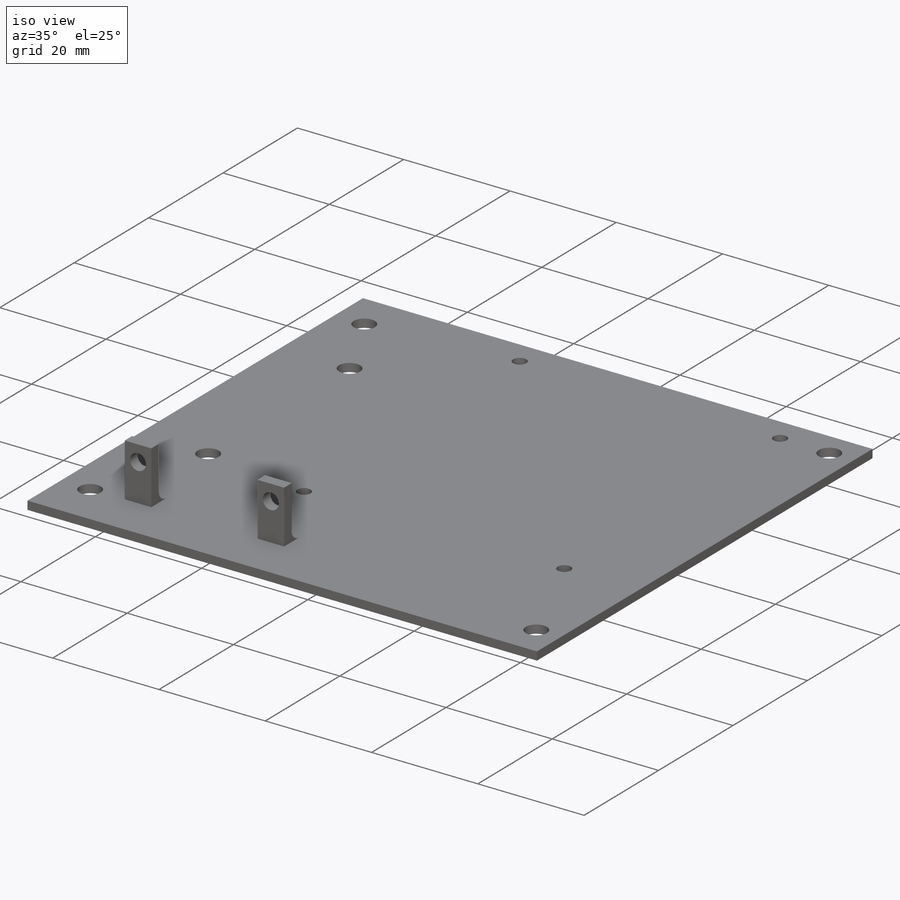
[diagram: iso view]
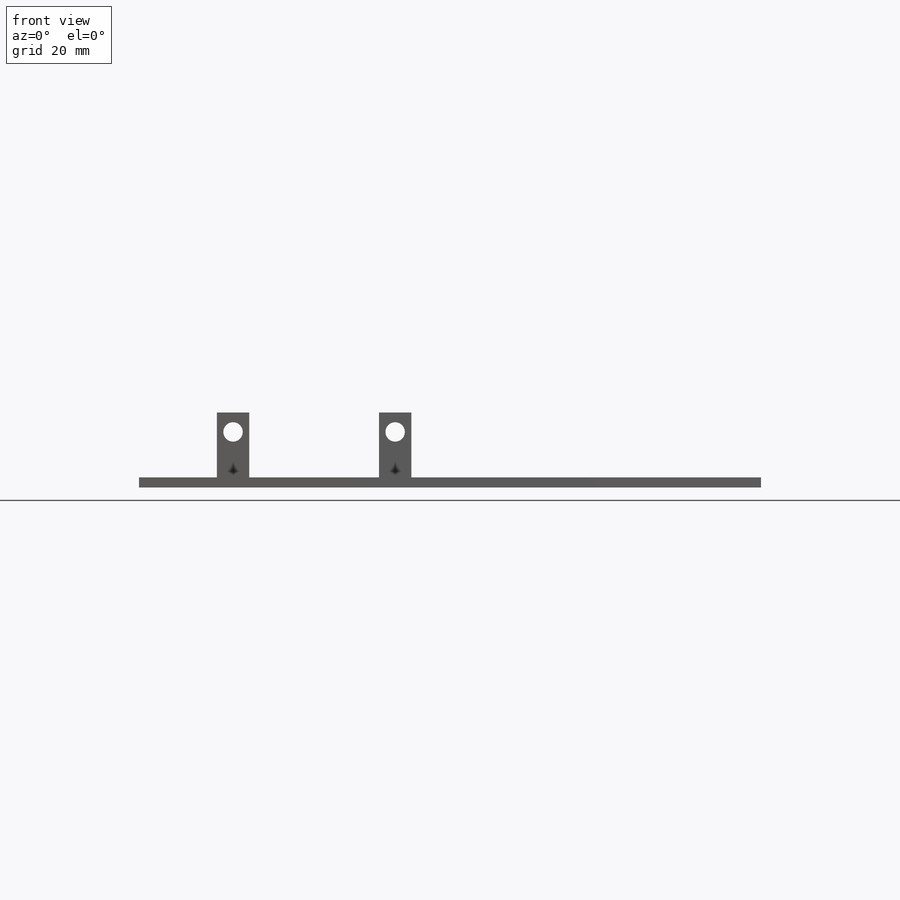
[diagram: front view]
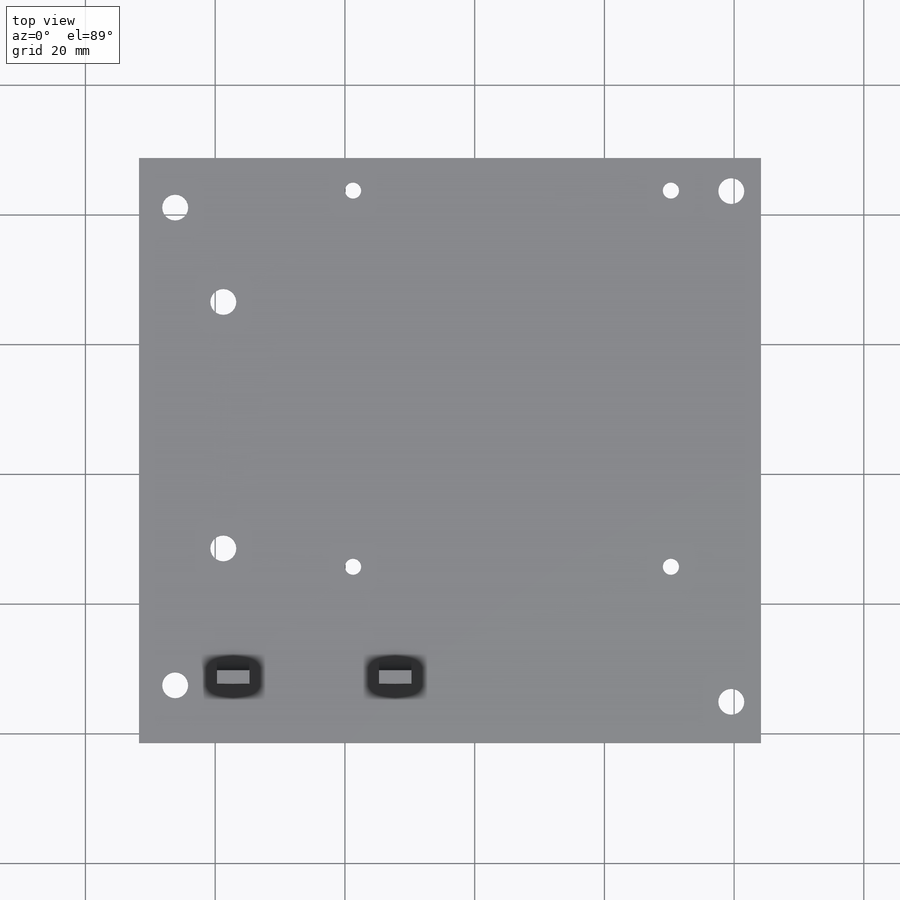
[diagram: top view]
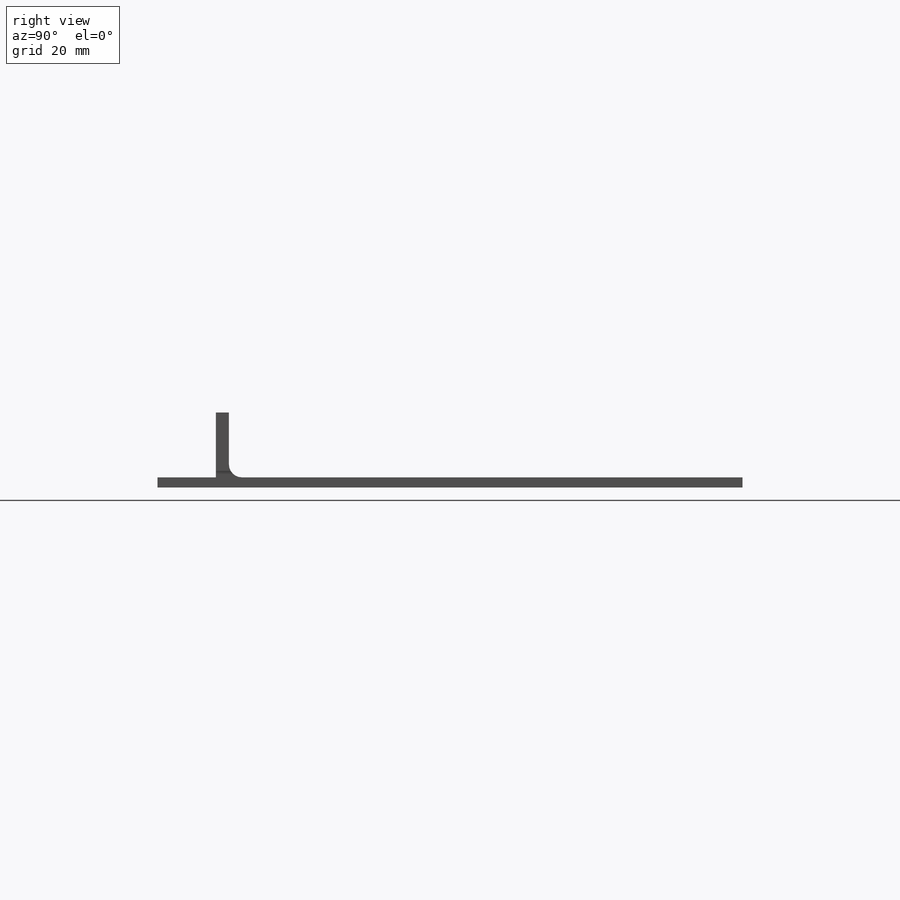
[diagram: right view]
SOLIDWORKS PART (.sldprt)
format: sldprt  version: not decoded by parser v0  size: 311,296 bytes
history: native  units: mm
features: sketch x7, cut_extrude x5, extrude x2, material x1, fillet x1 (+15 scaffold rows collapsed)
feature tree (31):
  scaffold x15  (default folders/planes/origin — collapsed)
  material  "ABS"
  sketch  "Sketch1"  dims[D1=96.89mm D2=90.17mm]
  extrude  "PCB"  Depth=1.57mm
  sketch  "Sketch2"  dims[D3=4.0mm D6=4.0mm D11=4.0mm D12=4.0mm D1=5.08mm D2=6.35mm D4=90.81mm D5=8.89mm D7=90.81mm D8=5.08mm D9=85.09mm D10=82.55mm]
  cut_extrude  "M3 Mounting Holes"  Depth=1.57mm
  sketch  "Sketch5"  dims[D1=0.5mm D2=0.5mm]
  cut_extrude  "Cut-Extrude1"  [1 undecoded]
  sketch  "Sketch8"  dims[c1.D1=2.5mm c1.D3=2.5mm c1.D5=2.5mm c1.D6=2.5mm c1.D2=5.0mm c1.D4=49.0mm c1.D7=58.0mm c1.D8=58.0mm c1.D9=49.0mm c1.D10=33.0mm c1.D11=11.89mm c2.D2=5.0mm c2.D11=36.0mm c2.D9=49.0mm c2.D12=49.0mm c2.D4=63.0mm c2.D7=58.0mm c2.D10=35.0mm c2.D8=58.0mm c3.D4=63.0mm]
  cut_extrude  "RPi mounting hole"  Depth=10mm
  sketch  "Sketch9"  dims[D1=4.0mm D2=4.0mm D3=38.0mm D4=35.0mm D5=13.0mm D6=13.0mm]
  cut_extrude  "PowerAdapterHoles"  Depth=10mm
  sketch  "Sketch10"  dims[D1=2.0mm D2=2.0mm D3=5.0mm D4=5.0mm D5=20.0mm D6=23.0mm D7=23.0mm D8=1.0mm]
  extrude  "DSub Holder"  Depth=10mm
  fillet  "Fillet2"  Radius=2mm
  sketch  "Sketch11"  dims[c1.D1=3.0mm c1.D2=3.0mm c1.D3=24.99mm c1.D4=3.0mm c1.D5=~7.55731mm c2.D4=7.0mm c2.D5=7.0mm c2.D6=2.5mm]
  cut_extrude  "DSub Fields"  [1 undecoded]
decode coverage: 13 of 15 modeling features carry decoded parameters
note: ~ marks probable driven/reference dimensions
note: 2 parameter values undecoded
note: suppression state not decoded; provenance and decode notes live in map.json
